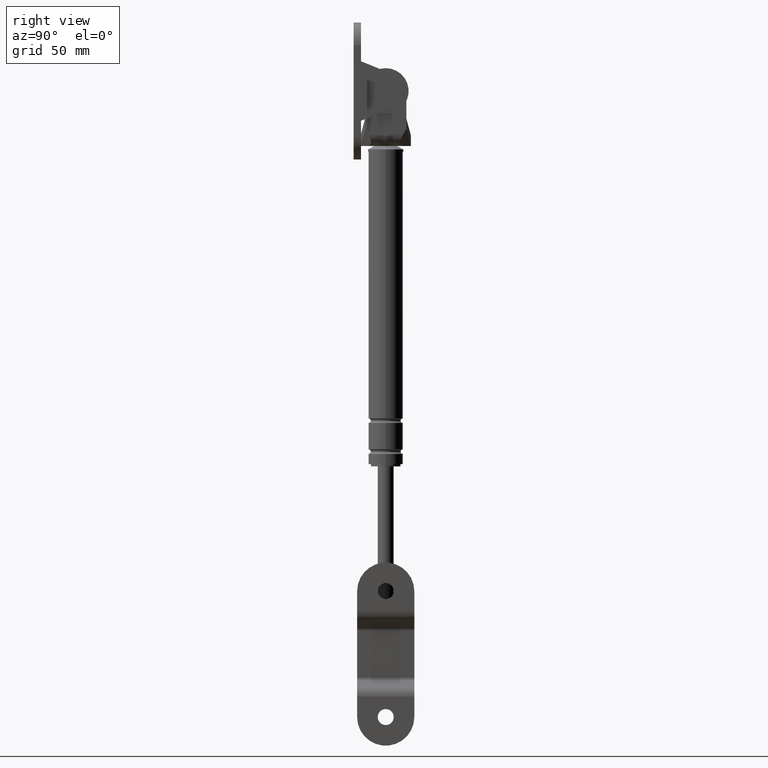
[diagram: clean part render]
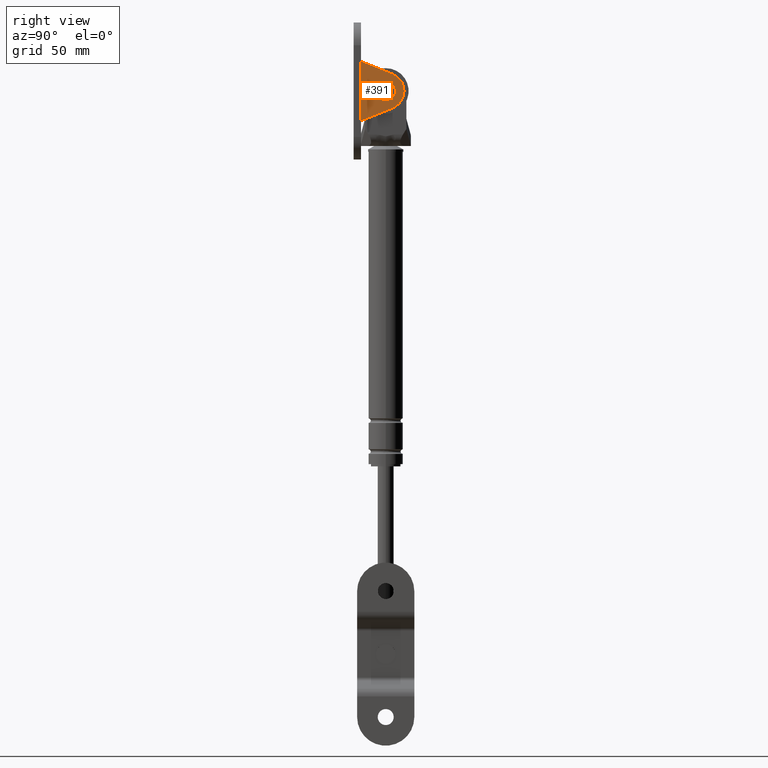
[diagram: same view with one face highlighted and labeled with its STEP entity id]
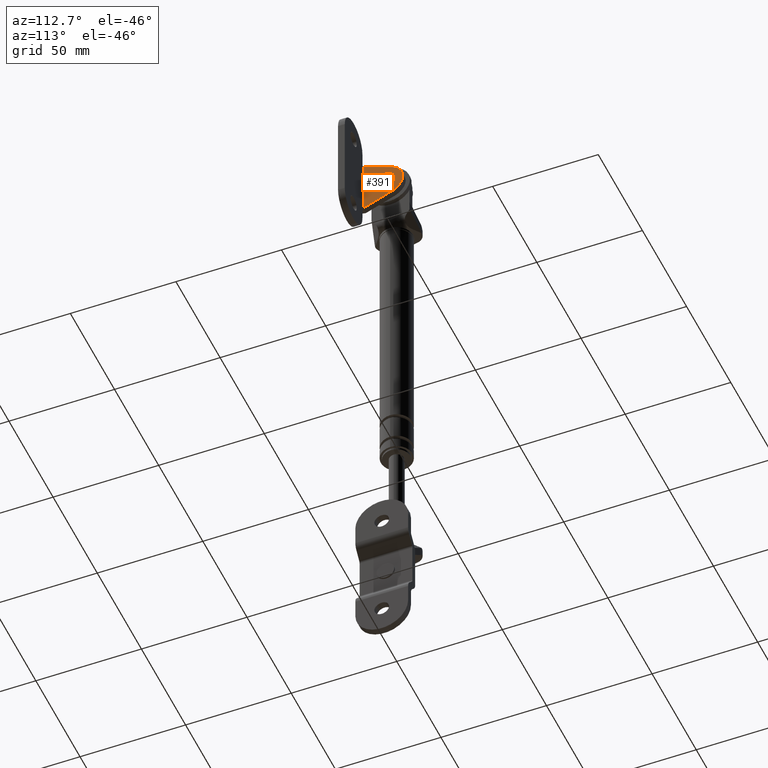
[diagram: same view with one face highlighted and labeled with its STEP entity id]
A machine part, right view. The second image highlights one B-rep face of the part: STEP entity #391.
A second angle (auxiliary view) of the same face is appended — the face is thin or edge-on in the first view.
In plain terms, the highlighted planar face has unit normal (1, 0, 0).
Its self-contained STEP definition (entity closure, byte-faithful):
#391=ADVANCED_FACE('',(#1155,#1156),#1154,.T.);
#1154=PLANE('',#2369);
#1155=FACE_OUTER_BOUND('',#2370,.T.);
#1156=FACE_BOUND('',#2371,.T.);
#2366=CARTESIAN_POINT('',(8.67047447386E+001,4.26325641456E-014,1.89267479342E+002));
#2367=DIRECTION('',(0.00000000000E+000,-1.00000000000E+000,0.00000000000E+000));
#2368=DIRECTION('',(0.00000000000E+000,0.00000000000E+000,-1.00000000000E+000));
#2369=AXIS2_PLACEMENT_3D('',#2366,#2367,#2368);
#2370=EDGE_LOOP('',(#3316,#3317,#3318,#3319));
#2371=EDGE_LOOP('',(#3320,#3321));
#3316=ORIENTED_EDGE('',*,*,#3823,.T.);
#3317=ORIENTED_EDGE('',*,*,#3816,.T.);
#3318=ORIENTED_EDGE('',*,*,#3820,.T.);
#3319=ORIENTED_EDGE('',*,*,#3845,.T.);
#3320=ORIENTED_EDGE('',*,*,#3867,.F.);
#3321=ORIENTED_EDGE('',*,*,#3868,.F.);
#3816=EDGE_CURVE('',#4861,#4862,#4863,.T.);
#3820=EDGE_CURVE('',#4862,#4889,#4890,.T.);
#3823=EDGE_CURVE('',#4909,#4861,#4910,.T.);
#3845=EDGE_CURVE('',#4889,#4909,#5060,.T.);
#3867=EDGE_CURVE('',#5203,#5204,#5205,.T.);
#3868=EDGE_CURVE('',#5204,#5203,#5211,.T.);
#4861=VERTEX_POINT('',#6897);
#4862=VERTEX_POINT('',#6898);
#4863=CIRCLE('',#6902,8.00000000000E+000);
#4889=VERTEX_POINT('',#6915);
#4890=LINE('',#6916,#6917);
#4909=VERTEX_POINT('',#6926);
#4910=LINE('',#6927,#6928);
#5060=LINE('',#7020,#7021);
#5203=VERTEX_POINT('',#7108);
#5204=VERTEX_POINT('',#7109);
#5205=CIRCLE('',#7113,4.25000000000E+000);
#5211=CIRCLE('',#7117,4.25000000000E+000);
#6897=CARTESIAN_POINT('',(9.48888127928E+001,0.00000000000E+000,1.73586820518E+002));
#6898=CARTESIAN_POINT('',(1.09720676684E+002,0.00000000000E+000,1.73586820518E+002));
#6899=CARTESIAN_POINT('',(1.02304744739E+002,0.00000000000E+000,1.76587479342E+002));
#6900=DIRECTION('',(0.00000000000E+000,-1.00000000000E+000,0.00000000000E+000));
#6901=DIRECTION('',(-0.00000000000E+000,-0.00000000000E+000,1.00000000000E+000));
#6902=AXIS2_PLACEMENT_3D('',#6899,#6900,#6901);
#6915=CARTESIAN_POINT('',(1.15304744739E+002,0.00000000000E+000,1.87387479342E+002));
#6916=CARTESIAN_POINT('',(1.09720676684E+002,4.26325641456E-014,1.73586820518E+002));
#6917=VECTOR('',#6918,1.48875787152E+001);
#6918=DIRECTION('',(3.75082352951E-001,0.00000000000E+000,9.26991493221E-001));
#6926=CARTESIAN_POINT('',(8.93047447386E+001,0.00000000000E+000,1.87387479342E+002));
#6927=CARTESIAN_POINT('',(8.93047447386E+001,4.26325641456E-014,1.87387479342E+002));
#6928=VECTOR('',#6929,1.48875787152E+001);
#6929=DIRECTION('',(3.75082352951E-001,0.00000000000E+000,-9.26991493221E-001));
#7020=CARTESIAN_POINT('',(1.15304744739E+002,4.26325641456E-014,1.87387479342E+002));
#7021=VECTOR('',#7022,2.60000000000E+001);
#7022=DIRECTION('',(-1.00000000000E+000,0.00000000000E+000,0.00000000000E+000));
#7108=CARTESIAN_POINT('',(1.02304744739E+002,0.00000000000E+000,1.72337479342E+002));
#7109=CARTESIAN_POINT('',(1.02304744739E+002,0.00000000000E+000,1.80837479342E+002));
#7110=CARTESIAN_POINT('',(1.02304744739E+002,0.00000000000E+000,1.76587479342E+002));
#7111=DIRECTION('',(-0.00000000000E+000,-1.00000000000E+000,0.00000000000E+000));
#7112=DIRECTION('',(-1.22460635382E-016,0.00000000000E+000,1.00000000000E+000));
#7113=AXIS2_PLACEMENT_3D('',#7110,#7111,#7112);
#7114=CARTESIAN_POINT('',(1.02304744739E+002,0.00000000000E+000,1.76587479342E+002));
#7115=DIRECTION('',(-0.00000000000E+000,-1.00000000000E+000,0.00000000000E+000));
#7116=DIRECTION('',(-1.22460635382E-016,0.00000000000E+000,1.00000000000E+000));
#7117=AXIS2_PLACEMENT_3D('',#7114,#7115,#7116);